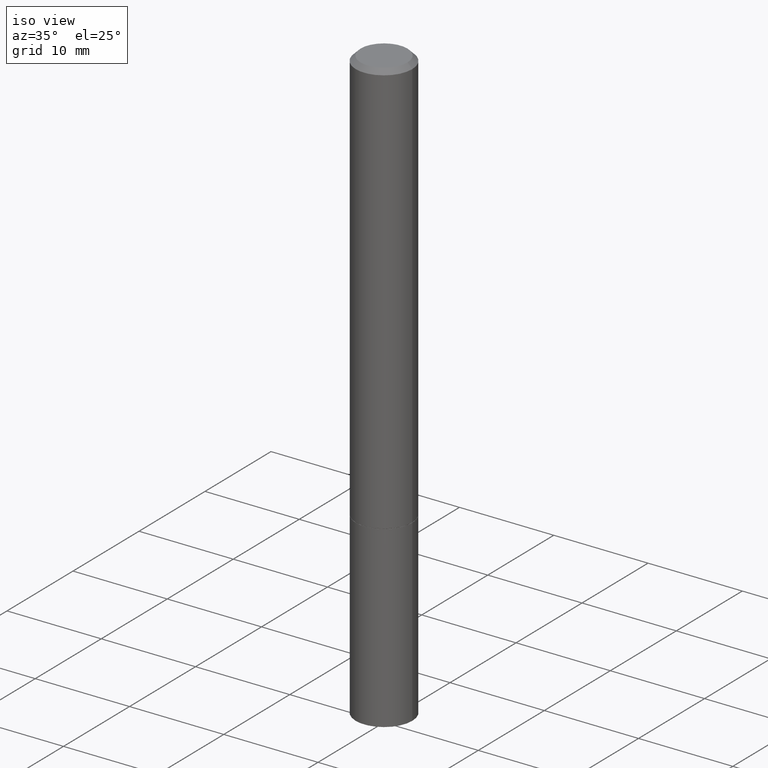
[diagram: clean part render]
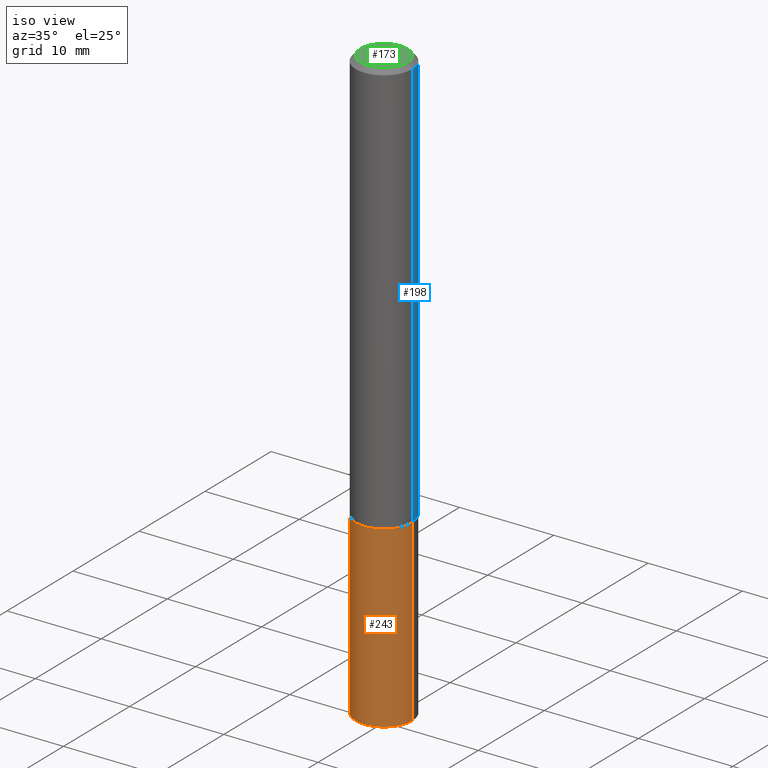
[diagram: same view with three faces highlighted in distinct colors, each labeled with its STEP entity id]
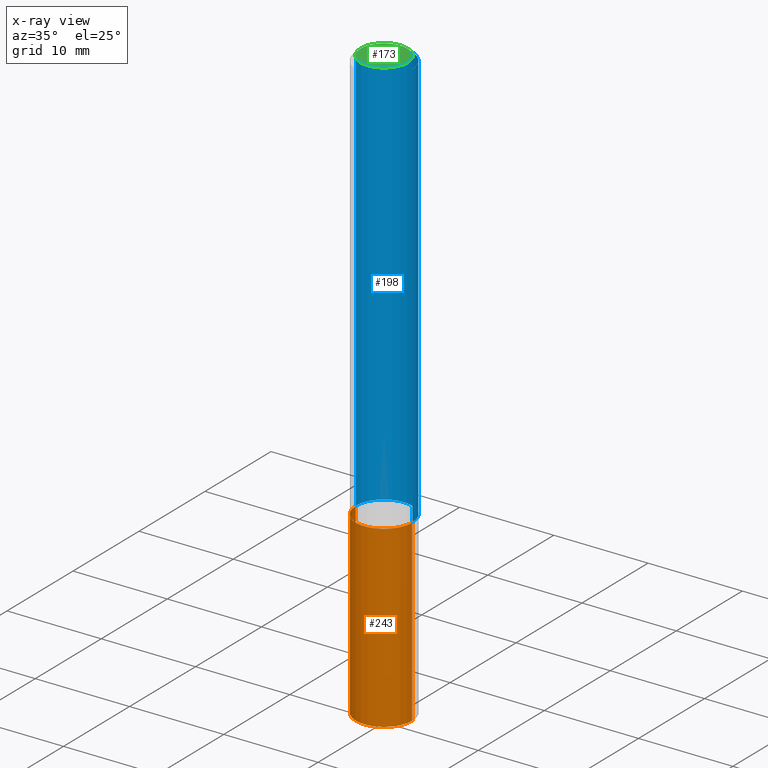
[diagram: x-ray of the same camera — body ghosted, the three highlighted faces saturated]
A machine part, iso view with three faces highlighted in distinct colors.
The next image is the same camera in x-ray (body ghosted, the three faces saturated) — at least one of them is partly hidden behind the body in this view.
Their STEP definitions:

[orange] entity #243 — the highlighted cylindrical surface (edge-blend (fillet) strip) has radius 2.9997 mm, axis along (-0, 0, 1).
#3 = CIRCLE ( 'NONE', #201, 0.1181000000000000383 ) ;
#6 = CARTESIAN_POINT ( 'NONE',  ( 0.000000000000000000, 0.000000000000000000, 0.000000000000000000 ) ) ;
#7 = EDGE_CURVE ( 'NONE', #158, #191, #230, .T. ) ;
#10 = AXIS2_PLACEMENT_3D ( 'NONE', #283, #130, #218 ) ;
#13 = VERTEX_POINT ( 'NONE', #251 ) ;
#36 = FACE_OUTER_BOUND ( 'NONE', #184, .T. ) ;
#49 = ORIENTED_EDGE ( 'NONE', *, *, #146, .T. ) ;
#63 = DIRECTION ( 'NONE',  ( -2.445468806185136877E-29, 3.491481338843145188E-15, 1.000000000000000000 ) ) ;
#74 = ORIENTED_EDGE ( 'NONE', *, *, #224, .F. ) ;
#78 = ORIENTED_EDGE ( 'NONE', *, *, #7, .F. ) ;
#80 = ORIENTED_EDGE ( 'NONE', *, *, #293, .T. ) ;
#82 = LINE ( 'NONE', #186, #92 ) ;
#83 = CARTESIAN_POINT ( 'NONE',  ( 0.1181000000000000383, -6.872981015512730918E-15, -1.732300000000000173 ) ) ;
#88 = CARTESIAN_POINT ( 'NONE',  ( 6.065496279980994755E-29, -8.659921164732655335E-15, -2.480300000000000171 ) ) ;
#92 = VECTOR ( 'NONE', #63, 39.37007874015748143 ) ;
#105 = VECTOR ( 'NONE', #147, 39.37007874015748143 ) ;
#109 = DIRECTION ( 'NONE',  ( -2.445468806185136597E-29, 3.491481338843145583E-15, 1.000000000000000000 ) ) ;
#112 = DIRECTION ( 'NONE',  ( -2.445468806185136597E-29, 3.491481338843145583E-15, 1.000000000000000000 ) ) ;
#130 = DIRECTION ( 'NONE',  ( -2.445468806185136597E-29, 3.491481338843145583E-15, 1.000000000000000000 ) ) ;
#138 = CYLINDRICAL_SURFACE ( 'NONE', #340, 0.1181000000000000383 ) ;
#142 = CARTESIAN_POINT ( 'NONE',  ( 0.1181000000000000383, -8.246878922347483612E-16, 5.758764772215001842E-30 ) ) ;
#146 = EDGE_CURVE ( 'NONE', #159, #13, #3, .T. ) ;
#147 = DIRECTION ( 'NONE',  ( -2.445468806185136877E-29, 3.491481338843145188E-15, 1.000000000000000000 ) ) ;
#158 = VERTEX_POINT ( 'NONE', #286 ) ;
#159 = VERTEX_POINT ( 'NONE', #321 ) ;
#167 = DIRECTION ( 'NONE',  ( 1.000000000000000000, -6.982962677686266711E-15, 4.876176775795935793E-29 ) ) ;
#184 = EDGE_LOOP ( 'NONE', ( #74, #49, #80, #78 ) ) ;
#186 = CARTESIAN_POINT ( 'NONE',  ( -0.1181000000000000383, 8.391509709326785915E-16, -5.809262341591045886E-30 ) ) ;
#191 = VERTEX_POINT ( 'NONE', #83 ) ;
#201 = AXIS2_PLACEMENT_3D ( 'NONE', #88, #109, #289 ) ;
#218 = DIRECTION ( 'NONE',  ( 1.000000000000000000, -6.982962677686270655E-15, 0.000000000000000000 ) ) ;
#224 = EDGE_CURVE ( 'NONE', #159, #158, #82, .T. ) ;
#230 = CIRCLE ( 'NONE', #10, 0.1181000000000000383 ) ;
#243 = ADVANCED_FACE ( 'NONE', ( #36 ), #138, .T. ) ;
#251 = CARTESIAN_POINT ( 'NONE',  ( 0.1181000000000000383, -9.484609056967403598E-15, -2.480300000000000171 ) ) ;
#283 = CARTESIAN_POINT ( 'NONE',  ( 4.236285612954512953E-29, -6.048293123277982656E-15, -1.732300000000000173 ) ) ;
#286 = CARTESIAN_POINT ( 'NONE',  ( -0.1181000000000000383, -6.514956173072640404E-15, -1.732300000000000173 ) ) ;
#289 = DIRECTION ( 'NONE',  ( 1.000000000000000000, -6.982962677686270655E-15, 0.000000000000000000 ) ) ;
#293 = EDGE_CURVE ( 'NONE', #13, #191, #299, .T. ) ;
#299 = LINE ( 'NONE', #142, #105 ) ;
#321 = CARTESIAN_POINT ( 'NONE',  ( -0.1181000000000000383, -6.514956173072640404E-15, -2.480300000000000171 ) ) ;
#340 = AXIS2_PLACEMENT_3D ( 'NONE', #6, #112, #167 ) ;

[blue] entity #198 — the highlighted cylindrical surface (edge-blend (fillet) strip) has radius 2.9997 mm, axis along (-0, 0, 1).
#25 = VERTEX_POINT ( 'NONE', #277 ) ;
#27 = DIRECTION ( 'NONE',  ( -2.445468806185136877E-29, 3.491481338843145188E-15, 1.000000000000000000 ) ) ;
#29 = EDGE_CURVE ( 'NONE', #260, #25, #331, .T. ) ;
#34 = AXIS2_PLACEMENT_3D ( 'NONE', #223, #316, #189 ) ;
#39 = CARTESIAN_POINT ( 'NONE',  ( 4.233840144148327350E-29, -6.044801641939138860E-15, -1.731300000000000283 ) ) ;
#56 = VECTOR ( 'NONE', #27, 39.37007874015748143 ) ;
#58 = CYLINDRICAL_SURFACE ( 'NONE', #166, 0.1180999999999999273 ) ;
#68 = DIRECTION ( 'NONE',  ( 1.000000000000000000, -6.982962677686262766E-15, 0.000000000000000000 ) ) ;
#86 = ORIENTED_EDGE ( 'NONE', *, *, #271, .T. ) ;
#101 = ORIENTED_EDGE ( 'NONE', *, *, #178, .F. ) ;
#104 = VECTOR ( 'NONE', #259, 39.37007874015748143 ) ;
#118 = DIRECTION ( 'NONE',  ( -2.445468806185136597E-29, 3.491481338843145583E-15, 1.000000000000000000 ) ) ;
#126 = ORIENTED_EDGE ( 'NONE', *, *, #29, .T. ) ;
#150 = EDGE_CURVE ( 'NONE', #302, #25, #179, .T. ) ;
#166 = AXIS2_PLACEMENT_3D ( 'NONE', #225, #290, #318 ) ;
#178 = EDGE_CURVE ( 'NONE', #200, #302, #253, .T. ) ;
#179 = CIRCLE ( 'NONE', #34, 0.1180999999999998301 ) ;
#189 = DIRECTION ( 'NONE',  ( 1.000000000000000000, -6.982962677686266711E-15, 0.000000000000000000 ) ) ;
#195 = EDGE_LOOP ( 'NONE', ( #86, #126, #291, #101 ) ) ;
#198 = ADVANCED_FACE ( 'NONE', ( #366 ), #58, .T. ) ;
#200 = VERTEX_POINT ( 'NONE', #255 ) ;
#203 = CARTESIAN_POINT ( 'NONE',  ( -0.1181000000000000383, -2.218164663425320121E-15, -1.731300000000000283 ) ) ;
#206 = CIRCLE ( 'NONE', #264, 0.1181000000000000383 ) ;
#223 = CARTESIAN_POINT ( 'NONE',  ( 4.890937612370292426E-31, -6.982962677686317493E-17, -0.02000000000000007674 ) ) ;
#225 = CARTESIAN_POINT ( 'NONE',  ( 0.000000000000000000, 0.000000000000000000, 0.000000000000000000 ) ) ;
#233 = CARTESIAN_POINT ( 'NONE',  ( 0.1180999999999998301, -8.800544403136798514E-16, -0.02000000000000007674 ) ) ;
#253 = LINE ( 'NONE', #315, #104 ) ;
#255 = CARTESIAN_POINT ( 'NONE',  ( 0.1181000000000000383, -6.869489534173886334E-15, -1.731300000000000283 ) ) ;
#259 = DIRECTION ( 'NONE',  ( -2.445468806185136877E-29, 3.491481338843145188E-15, 1.000000000000000000 ) ) ;
#260 = VERTEX_POINT ( 'NONE', #203 ) ;
#264 = AXIS2_PLACEMENT_3D ( 'NONE', #39, #118, #68 ) ;
#271 = EDGE_CURVE ( 'NONE', #200, #260, #206, .T. ) ;
#277 = CARTESIAN_POINT ( 'NONE',  ( -0.1180999999999998301, 7.548582654578836825E-16, -0.02000000000000007674 ) ) ;
#290 = DIRECTION ( 'NONE',  ( -2.445468806185136597E-29, 3.491481338843145583E-15, 1.000000000000000000 ) ) ;
#291 = ORIENTED_EDGE ( 'NONE', *, *, #150, .F. ) ;
#302 = VERTEX_POINT ( 'NONE', #233 ) ;
#315 = CARTESIAN_POINT ( 'NONE',  ( 0.1180999999999999273, -8.246878922347475723E-16, 5.758764772214996937E-30 ) ) ;
#316 = DIRECTION ( 'NONE',  ( -2.445468806185136597E-29, 3.491481338843145583E-15, 1.000000000000000000 ) ) ;
#318 = DIRECTION ( 'NONE',  ( 1.000000000000000000, -6.982962677686266711E-15, 4.876176775795935793E-29 ) ) ;
#331 = LINE ( 'NONE', #356, #56 ) ;
#356 = CARTESIAN_POINT ( 'NONE',  ( -0.1180999999999999273, 8.391509709326778027E-16, -5.809262341591040281E-30 ) ) ;
#366 = FACE_OUTER_BOUND ( 'NONE', #195, .T. ) ;

[green] entity #173 — the highlighted planar face has unit normal (0, -0, -1).
#2 = DIRECTION ( 'NONE',  ( 1.000000000000000000, -6.982962677686266711E-15, 4.877161320636775200E-29 ) ) ;
#8 = CARTESIAN_POINT ( 'NONE',  ( 6.850286386810215676E-16, 0.09809999999999984011, -3.659911380360642646E-16 ) ) ;
#23 = AXIS2_PLACEMENT_3D ( 'NONE', #342, #344, #2 ) ;
#32 = DIRECTION ( 'NONE',  ( -2.445468806185136597E-29, 3.491481338843145583E-15, 1.000000000000000000 ) ) ;
#43 = EDGE_LOOP ( 'NONE', ( #350, #107 ) ) ;
#45 = CARTESIAN_POINT ( 'NONE',  ( 0.09809999999999984011, -7.765346469475330681E-16, -4.695363739109941188E-17 ) ) ;
#59 = DIRECTION ( 'NONE',  ( 2.438088387897960049E-29, -3.491481338843145188E-15, -1.000000000000000000 ) ) ;
#93 = EDGE_CURVE ( 'NONE', #365, #306, #241, .T. ) ;
#107 = ORIENTED_EDGE ( 'NONE', *, *, #113, .T. ) ;
#113 = EDGE_CURVE ( 'NONE', #306, #365, #119, .T. ) ;
#114 = PLANE ( 'NONE',  #214 ) ;
#119 = CIRCLE ( 'NONE', #23, 0.09809999999999984011 ) ;
#160 = FACE_OUTER_BOUND ( 'NONE', #43, .T. ) ;
#163 = DIRECTION ( 'NONE',  ( 1.000000000000000000, -6.982962677686266711E-15, 4.877161320636775200E-29 ) ) ;
#173 = ADVANCED_FACE ( 'NONE', ( #160 ), #114, .F. ) ;
#214 = AXIS2_PLACEMENT_3D ( 'NONE', #8, #59, #229 ) ;
#229 = DIRECTION ( 'NONE',  ( -1.000000000000000000, 6.982962677686265922E-15, -4.876176775795935793E-29 ) ) ;
#241 = CIRCLE ( 'NONE', #339, 0.09809999999999984011 ) ;
#268 = CARTESIAN_POINT ( 'NONE',  ( -0.09809999999999984011, 7.199434520694526251E-16, -4.695363739110943904E-17 ) ) ;
#306 = VERTEX_POINT ( 'NONE', #45 ) ;
#339 = AXIS2_PLACEMENT_3D ( 'NONE', #347, #32, #163 ) ;
#342 = CARTESIAN_POINT ( 'NONE',  ( 1.148236555768741665E-45, -1.639377487418492057E-31, -4.695363739110452099E-17 ) ) ;
#344 = DIRECTION ( 'NONE',  ( -2.445468806185136597E-29, 3.491481338843145583E-15, 1.000000000000000000 ) ) ;
#347 = CARTESIAN_POINT ( 'NONE',  ( 1.148236555768741665E-45, -1.639377487418492057E-31, -4.695363739110452099E-17 ) ) ;
#350 = ORIENTED_EDGE ( 'NONE', *, *, #93, .T. ) ;
#365 = VERTEX_POINT ( 'NONE', #268 ) ;